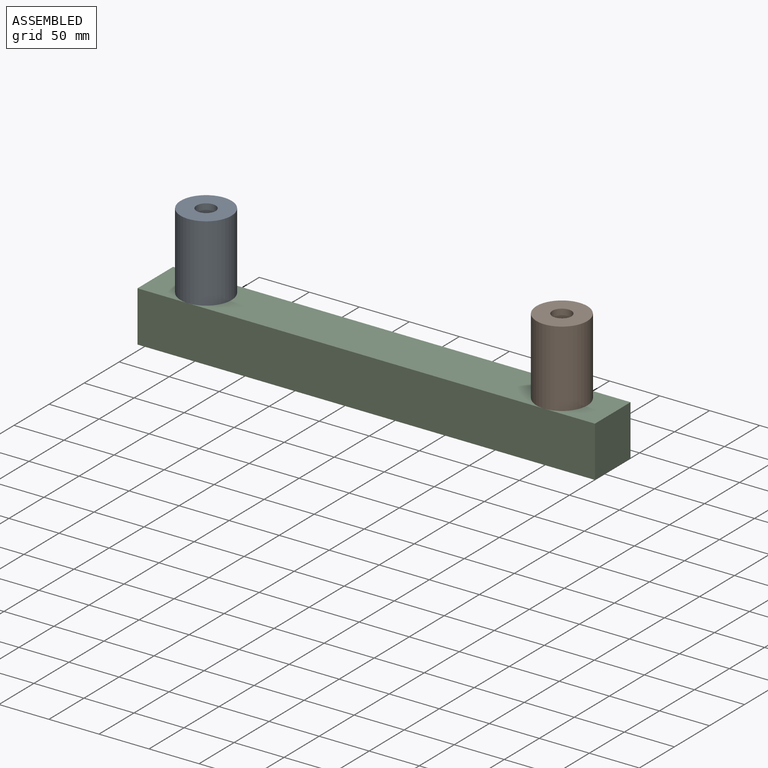
[diagram: assembled view]
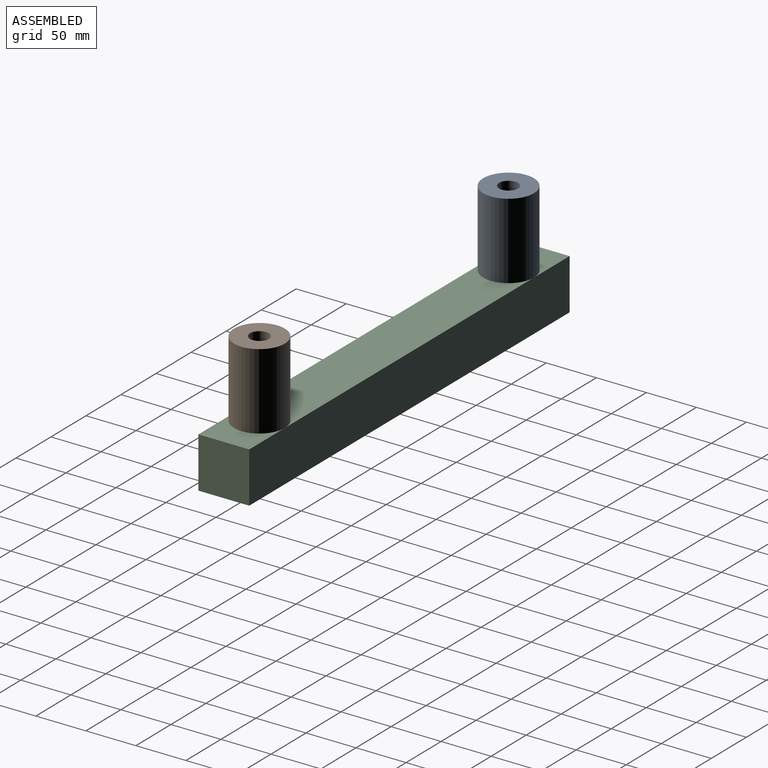
[diagram: assembled view, second angle]
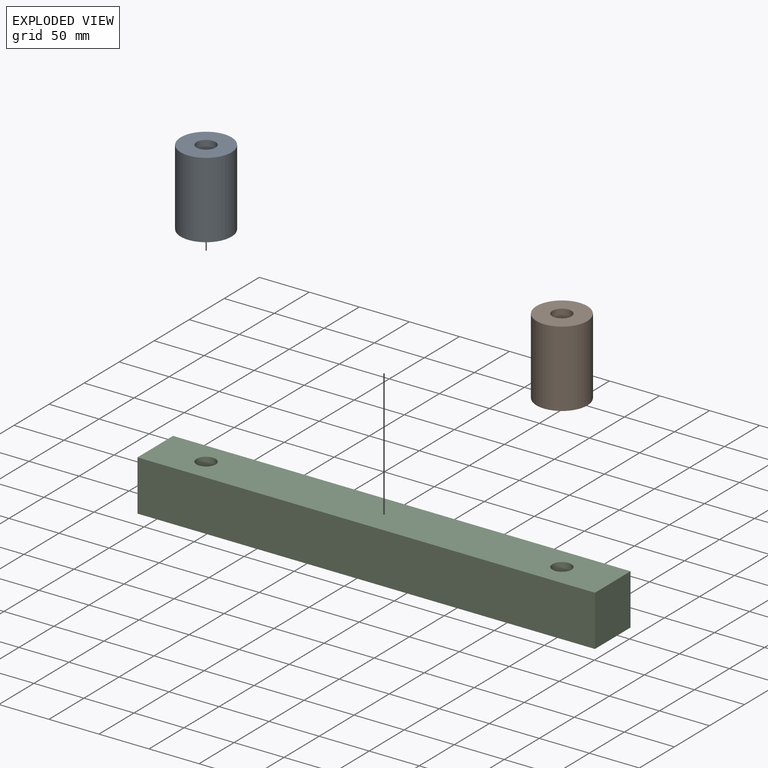
[diagram: exploded view]
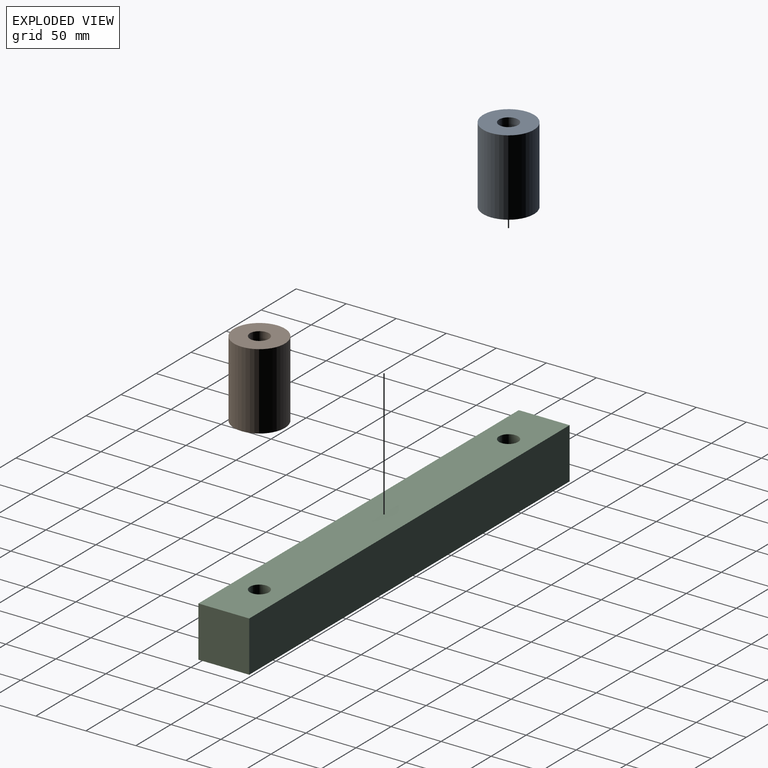
[diagram: exploded view, second angle]
ASSEMBLY  parts=3 mates=2
PART A: 4 faces, bbox 50.8x50.8x76.2 mm
  f0: cylinder r=25.4mm len=76.2mm, axis (0,0,-1), area 12161mm2, adj f1,f2
  f1: plane 50.8x50.8mm, normal (0,0,1), area 1741.8mm2, adj f0,f3
  f2: plane 50.8x50.8mm, normal (0,0,-1), area 1741.8mm2, adj f0,f3
  f3: cylinder r=9.53mm len=76.2mm, axis (0,0,-1), area 4560.4mm2, adj f1,f2
PART B: same geometry as A
PART C: 8 faces, bbox 457.2x50.8x50.8 mm
  f0: plane 50.8x50.8mm, normal (-1,0,0), area 2580.6mm2, adj f1,f2,f3,f4
  f1: plane 457.2x50.8mm, normal (0,-1,0), area 23225.8mm2, adj f0,f3,f4,f6
  f2: plane 457.2x50.8mm, normal (0,1,0), area 23225.8mm2, adj f0,f3,f4,f6
  f3: plane 457.2x50.8mm, normal (0,0,1), area 22655.7mm2, adj f0,f1,f2,f5,f6,f7
  f4: plane 457.2x50.8mm, normal (0,0,-1), area 22655.7mm2, adj f0,f1,f2,f5,f6,f7
  f5: cylinder r=9.53mm len=50.8mm, axis (0,0,1), area 3040.2mm2, adj f3,f4
  f6: plane 50.8x50.8mm, normal (1,0,0), area 2580.6mm2, adj f1,f2,f3,f4
  f7: cylinder r=9.53mm len=50.8mm, axis (0,0,1), area 3040.2mm2, adj f3,f4
PLACE A t=(90.47,30.72,75)mm
PLACE B t=(446.07,30.72,75)mm
PLACE C t=(39.67,5.32,24.2)mm
MATE parallel B.f3 <-> C.f7  axis (0,0,-1) through (446.07,30.72,75)mm
MATE parallel C.f5 <-> A.f0  axis (0,0,1) through (90.47,30.72,75)mm
